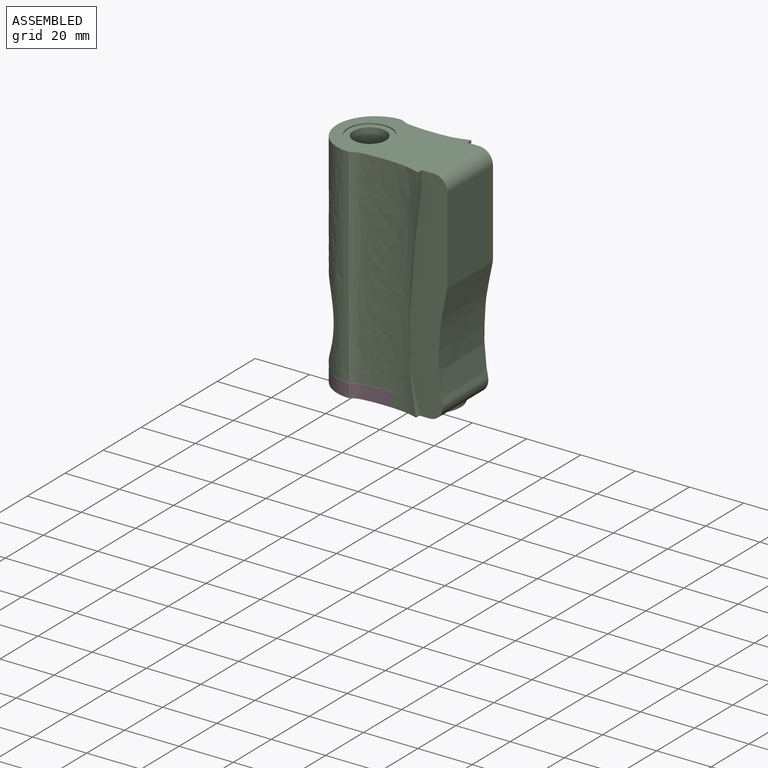
[diagram: assembled view]
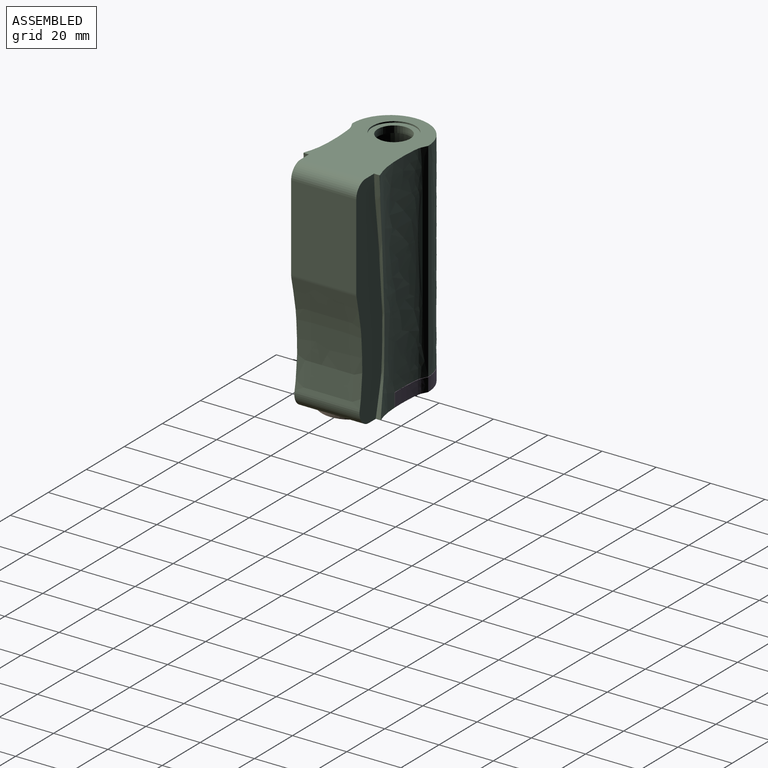
[diagram: assembled view, second angle]
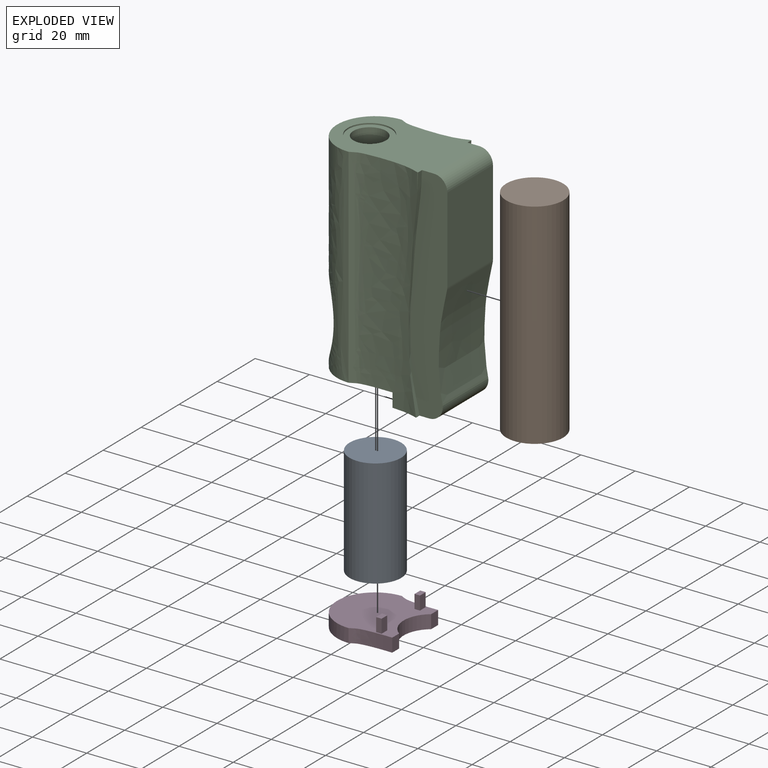
[diagram: exploded view]
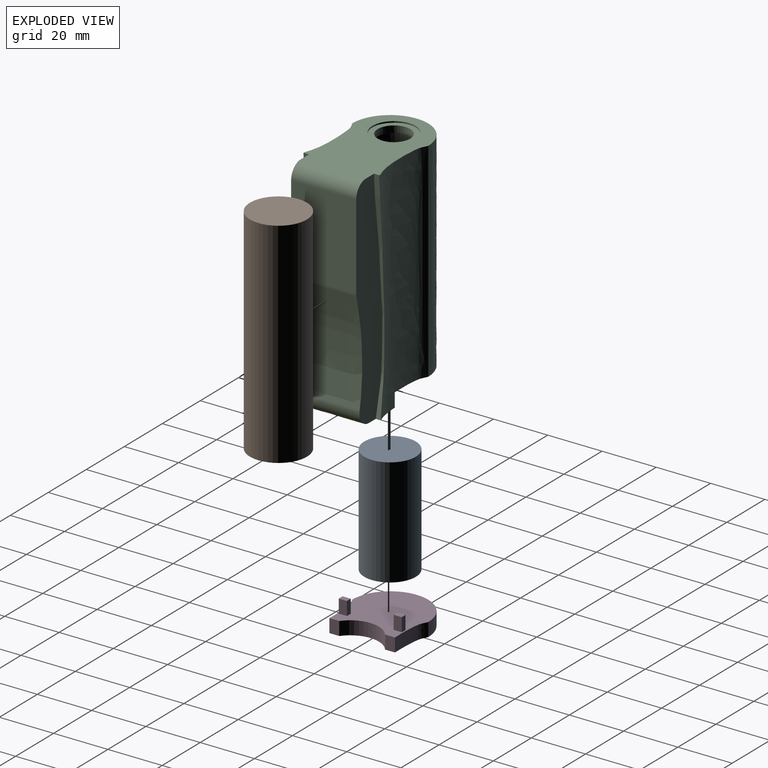
[diagram: exploded view, second angle]
ASSEMBLY  parts=4 mates=2
PART A: 3 faces, bbox 19x19x40 mm
  f0: cylinder r=9.5mm len=40mm, axis (0,0,-1), area 2387.6mm2, adj f1,f2
  f1: plane 19x19mm, normal (0,0,1), area 283.5mm2, adj f0
  f2: plane 19x19mm, normal (0,0,-1), area 283.5mm2, adj f0
PART B: 3 faces, bbox 21x21x79 mm
  f0: cylinder r=10.5mm len=79mm, axis (0,0,-1), area 5211.9mm2, adj f1,f2
  f1: plane 21x21mm, normal (0,0,1), area 346.4mm2, adj f0
  f2: plane 21x21mm, normal (0,0,-1), area 346.4mm2, adj f0
PART C: 42 faces, bbox 53.3x28x82 mm
  f0: plane 13.59x6.41mm, normal (0,0,-1), area 37.5mm2, adj f2,f9,f22,f35,f36,f38
  f1: plane 6.86x0.4mm, normal (0,1,0), area 1.4mm2, adj f2,f7,f35
  f2: extruded ~82x25.27mm, area 1837.9mm2, adj f0,f1,f7,f14,f22,f24,f35
  f3: extruded ~38.39x24mm, area 929.5mm2, adj f34,f36,f37,f38
  f4: plane 31.47x24mm, normal (1,0,0), area 755.3mm2, adj f34,f36,f37,f39
  f5: plane 6.86x0.4mm, normal (0,-1,0), area 1.4mm2, adj f6,f7,f33
  f6: extruded ~82x25.27mm, area 1837.9mm2, adj f5,f7,f14,f15,f23,f24,f33
  f7: plane 48.2x28mm, normal (0,0,1), area 855.4mm2, adj f1,f2,f5,f6,f14,f19,f33,f34
  f8: plane 74x11.93mm, normal (0,1,0), area 791.7mm2, adj f9,f10,f12,f17,f23,f24,f29,f30
  f9: cylinder r=10.5mm len=79mm, axis (0,0,-1), area 3612.4mm2, adj f0,f8,f10,f13,f15,f17,f18,f22
  f10: plane 0.13x0.09mm, normal (0,0,1), area 0mm2, adj f8,f9,f23
  f11: cylinder r=25mm len=34.58mm, axis (0,-1,0), area 389.1mm2, adj f12,f41
  f12: cylinder r=9.5mm len=73.9mm, axis (0,0,-1), area 2403.2mm2, adj f8,f11,f13,f16,f17,f24
  f13: plane 74x11.93mm, normal (0,-1,0), area 791.7mm2, adj f9,f12,f17,f18,f22,f24,f25,f27
  f14: extruded ~76.9x28mm, area 2401.9mm2, adj f2,f6,f7,f24,f40,f41
  f15: plane 13.59x6.41mm, normal (0,0,-1), area 37.5mm2, adj f6,f9,f23,f33,f34,f38
  f16: cylinder r=5mm len=10mm, axis (-1,0,0), area 77.7mm2, adj f12,f40
  f17: plane 42x21mm, normal (0,0,-1), area 600.6mm2, adj f8,f9,f12,f13,f21
  f18: plane 0.13x0.09mm, normal (0,0,1), area 0mm2, adj f9,f13,f22
  f19: cylinder r=8mm len=16mm, axis (0,0,1), area 25.1mm2, adj f7,f20
  f20: plane 16x16mm, normal (0,0,1), area 88mm2, adj f19,f21
  f21: cylinder r=6mm len=12mm, axis (0,0,1), area 94.2mm2, adj f17,f20
  f22: plane 5.1x3.57mm, normal (-1,0,0), area 18.2mm2, adj f0,f2,f9,f13,f18,f24
  f23: plane 5.1x3.57mm, normal (-1,0,0), area 18.2mm2, adj f6,f8,f9,f10,f15,f24
  f24: plane 29.39x28mm, normal (0,0,-1), area 244.5mm2, adj f2,f6,f8,f12,f13,f14,f22,f23
  f25: plane 44.9x3mm, normal (1,0,0), area 134.7mm2, adj f13,f24,f26,f28
  f26: plane 44.9x2mm, normal (0,-1,0), area 89.8mm2, adj f24,f25,f27,f28
  f27: plane 44.9x3mm, normal (-1,0,0), area 134.7mm2, adj f13,f24,f26,f28
  f28: plane 3x2mm, normal (0,0,-1), area 6mm2, adj f13,f25,f26,f27
  f29: plane 44.9x3mm, normal (1,0,0), area 134.7mm2, adj f8,f24,f31,f32
  f30: plane 44.9x3mm, normal (-1,0,0), area 134.7mm2, adj f8,f24,f31,f32
  f31: plane 44.9x2mm, normal (0,1,0), area 89.8mm2, adj f24,f29,f30,f32
  f32: plane 3x2mm, normal (0,0,-1), area 6mm2, adj f8,f29,f30,f31
  f33: extruded ~82x4.33mm, area 104.6mm2, adj f5,f6,f7,f15,f34
  f34: plane 82x13.85mm, normal (0,-1,0), area 878.4mm2, adj f3,f4,f7,f15,f33,f37,f38,f39
  f35: extruded ~82x4.33mm, area 104.6mm2, adj f0,f1,f2,f7,f36
  f36: plane 82x13.85mm, normal (0,1,0), area 878.4mm2, adj f0,f3,f4,f7,f35,f37,f38,f39
  f37: cylinder r=5mm len=24mm, axis (0,-1,0), area 23mm2, adj f3,f4,f34,f36
  f38: cylinder r=5mm len=24mm, axis (0,-1,0), area 182.2mm2, adj f0,f3,f9,f15,f34,f36
  f39: cylinder r=5mm len=24mm, axis (0,-1,0), area 188.5mm2, adj f4,f7,f34,f36
  f40: bspline ~12.94x12.01mm, area 62.8mm2, adj f14,f16
  f41: bspline ~35.47x24.83mm, area 90.2mm2, adj f11,f14,f24
PART D: 18 faces, bbox 33.2x28x10 mm
  f0: plane 33.2x28mm, normal (0,0,1), area 611.6mm2, adj f1,f2,f4,f5,f6,f7,f8,f9
  f1: extruded ~28x14mm, area 219.9mm2, adj f0,f3,f4,f5
  f2: cylinder r=10.5mm len=16.86mm, axis (0,0,-1), area 97.9mm2, adj f0,f3,f6,f7
  f3: plane 33.2x28mm, normal (0,0,-1), area 623.6mm2, adj f1,f2,f4,f5,f6,f7
  f4: extruded ~14.74x5mm, area 75.3mm2, adj f0,f1,f3,f6
  f5: extruded ~14.74x5mm, area 75.3mm2, adj f0,f1,f3,f7
  f6: plane 5x3.64mm, normal (1,0,0), area 18.2mm2, adj f0,f2,f3,f4
  f7: plane 5x3.64mm, normal (1,0,0), area 18.2mm2, adj f0,f2,f3,f5
  f8: plane 5x3mm, normal (-1,0,0), area 15mm2, adj f0,f9,f11,f12
  f9: plane 5x2mm, normal (0,1,0), area 10mm2, adj f0,f8,f10,f12
  f10: plane 5x3mm, normal (1,0,0), area 15mm2, adj f0,f9,f11,f12
  f11: plane 5x2mm, normal (0,-1,0), area 10mm2, adj f0,f8,f10,f12
  f12: plane 3x2mm, normal (0,0,1), area 6mm2, adj f8,f9,f10,f11
  f13: plane 5x2mm, normal (0,-1,0), area 10mm2, adj f0,f14,f16,f17
  f14: plane 5x3mm, normal (-1,0,0), area 15mm2, adj f0,f13,f15,f17
  f15: plane 5x2mm, normal (0,1,0), area 10mm2, adj f0,f14,f16,f17
  f16: plane 5x3mm, normal (1,0,0), area 15mm2, adj f0,f13,f15,f17
  f17: plane 3x2mm, normal (0,0,1), area 6mm2, adj f13,f14,f15,f16
PLACE A t=(3.34,32.64,-9.52)mm
PLACE B rot(axis=(1,0,0),180deg) t=(-17.49,1.07,64.48)mm
PLACE C t=(-23.87,15.07,-4.46)mm
PLACE D t=(-23.87,15.07,-4.46)mm
MATE fastened B.f0 <-> C.f9  axis (0,0,-1) through (-17.49,1.07,-14.52)mm
MATE fastened A.f0 <-> D.f0  axis (0,0,-1) through (-38.41,1.07,-9.52)mm
